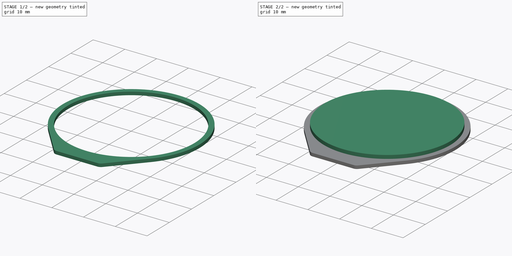
[diagram: build sequence overview — one tinted view per stage of 2, left to right]
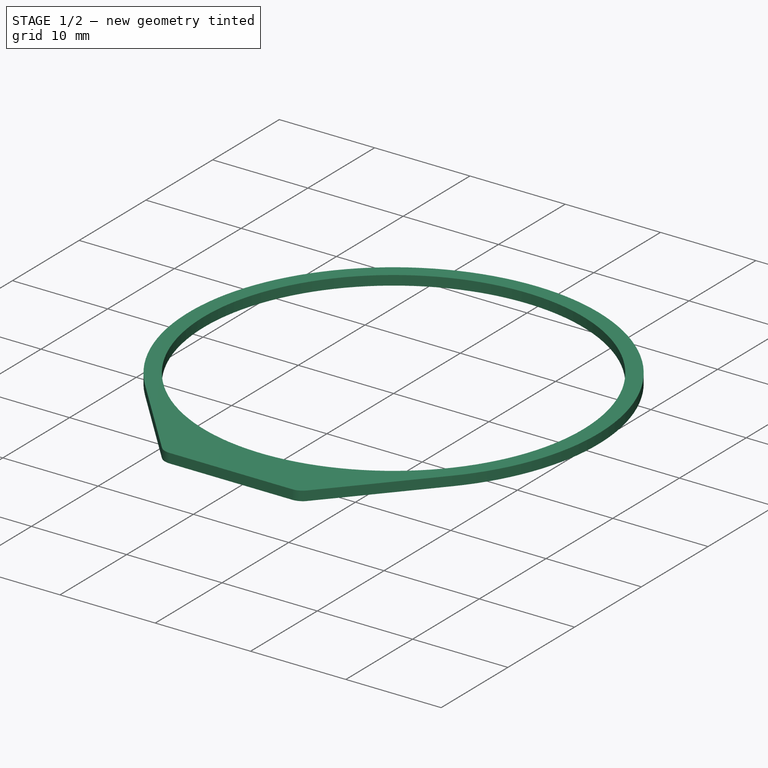
[diagram: stage 1 of 2 — iso view after this stage's code; geometry added in this stage tinted green]
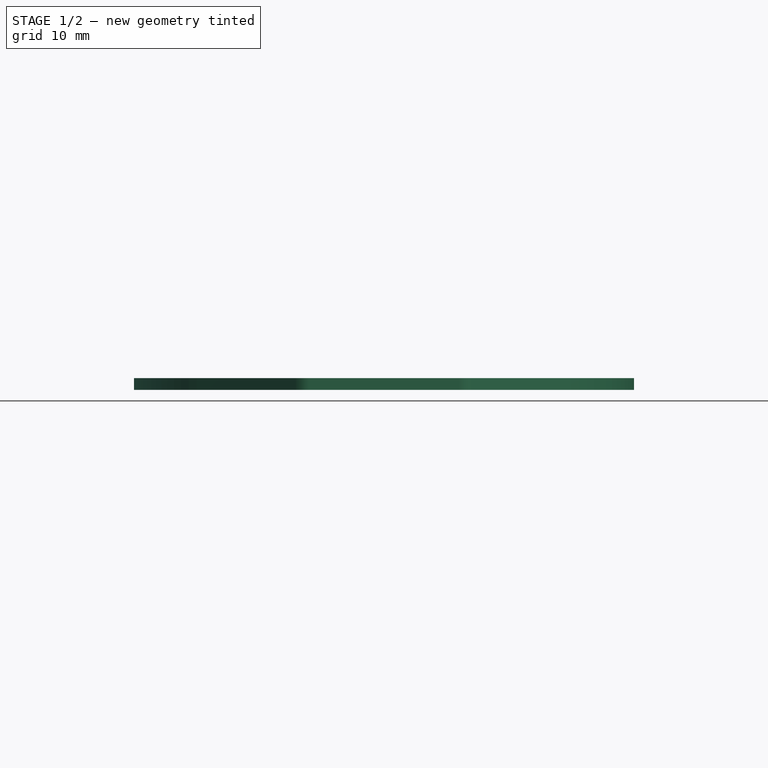
[diagram: stage 1 of 2 — front view after this stage's code; geometry added in this stage tinted green]
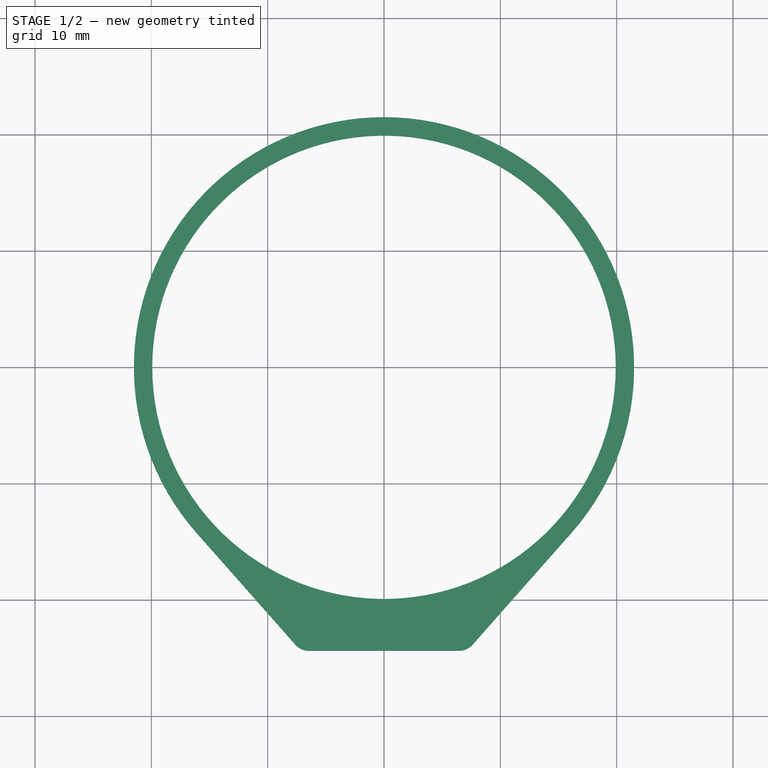
[diagram: stage 1 of 2 — top view after this stage's code; geometry added in this stage tinted green]
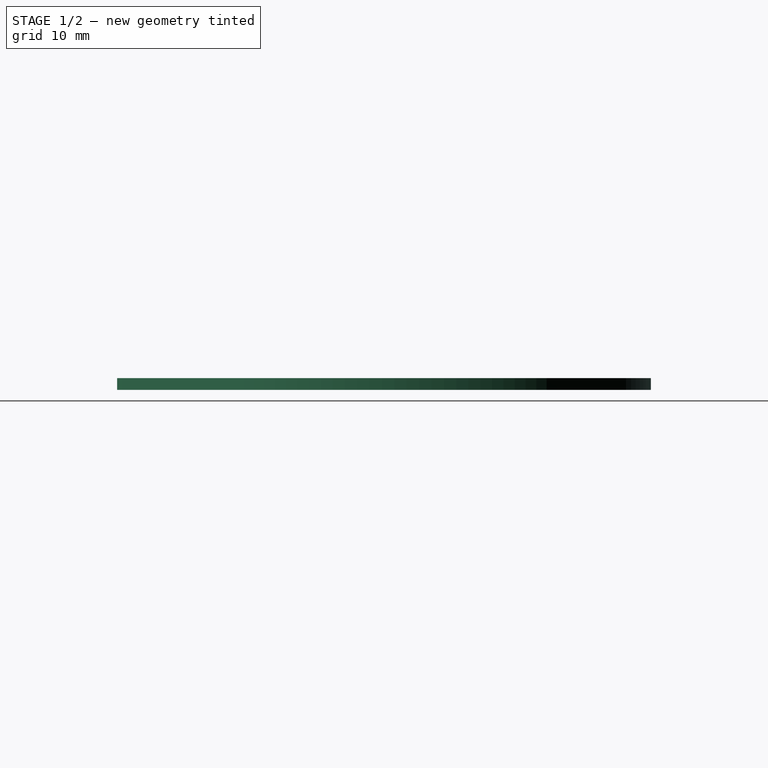
[diagram: stage 1 of 2 — right view after this stage's code; geometry added in this stage tinted green]
FCSTD DOCUMENT  (FreeCAD 0.20R29603 (Git))
Label: LCD
License: All rights reserved
LicenseURL: http://en.wikipedia.org/wiki/All_rights_reserved
objects: PartDesign::Pad×2, Sketcher::SketchObject×1, Image::ImagePlane×1, PartDesign::Body×1
note: 6 computed .brp shape members not serialized (recipe doc carries the construction recipe); baked Part::Feature solids carry a one-line shape summary decoded from their .brp

FEATURE [Sketcher::SketchObject] Sketch
  FullyConstrained = true
  MapMode = 5
  Support = -> [XY_Plane]
  sketch-geometry (10):
    g0: ArcOfCircle CenterX=0 CenterY=0 CenterZ=0 NormalX=0 NormalY=0 NormalZ=1 AngleXU=0 Radius=21.5 StartAngle=5.55918 EndAngle=10.1488
    g1: Circle CenterX=0 CenterY=0 CenterZ=0 NormalX=0 NormalY=0 NormalZ=1 AngleXU=0 Radius=19.92
    g2: GeomPoint X=0 Y=21.5 Z=0
    g3: LineSegment StartX=-16.107 StartY=-14.2413 StartZ=0 EndX=-7.62013 EndY=-23.8399 EndZ=0
    g4: LineSegment StartX=16.107 StartY=-14.2413 StartZ=0 EndX=7.62013 EndY=-23.8399 EndZ=0
    g5: LineSegment StartX=-6.44394 StartY=-24.37 StartZ=0 EndX=6.44394 EndY=-24.37 EndZ=0
    g6: ArcOfCircle CenterX=-6.44394 CenterY=-22.8 CenterZ=0 NormalX=0 NormalY=0 NormalZ=1 AngleXU=0 Radius=1.57 StartAngle=3.86559 EndAngle=4.71239
    g7: GeomPoint X=-7.15147 Y=-24.37 Z=0
    g8: ArcOfCircle CenterX=6.44394 CenterY=-22.8 CenterZ=0 NormalX=0 NormalY=0 NormalZ=1 AngleXU=0 Radius=1.57 StartAngle=4.71239 EndAngle=5.55918
    g9: GeomPoint X=7.15147 Y=-24.37 Z=0
  constraints (22):
    c: Coincident(g0,g-1)
    c: Diameter(g0) = 43
    c: Coincident(g1,g0)
    c: Diameter(g1) = 39.84
    c: PointOnObject(g2,g-2)
    c: PointOnObject(g2,g0)
    c: Symmetric(g7,g9,g-2)
    c: Distance(g2,g5) = 45.87
    c: Distance(g3,g7) = 13.52
    c: Distance(g4,g9) = 13.52
    c: PointOnObject(g7,g3)
    c: PointOnObject(g7,g5)
    c: Tangent(g3,g6) = -1.5708
    c: Tangent(g5,g6) = -1.5708
    c: PointOnObject(g9,g5)
    c: Tangent(g4,g8) = 1.5708
    c: Tangent(g5,g8) = -1.5708
    c: Radius(g6) = 1.57
    c: Radius(g8) = 1.57
    c: Tangent(g0,g3) = -1.5708
    c: Tangent(g0,g4) = 1.5708
    c: Distance(g5) = 12.8879
FEATURE [Image::ImagePlane] ImagePlane
  Placement = pos=(-3.42,2.92,0) rot=(0,0,1;1.5708rad)
  XSize = 59.1896
  YSize = 55.4419
FEATURE [PartDesign::Pad] Pad
  Direction = (0,0,1)
  Length = 1
  Length2 = 10
  Profile = -> Sketch
  ReferenceAxis = -> Sketch [N_Axis]
  Type = 0
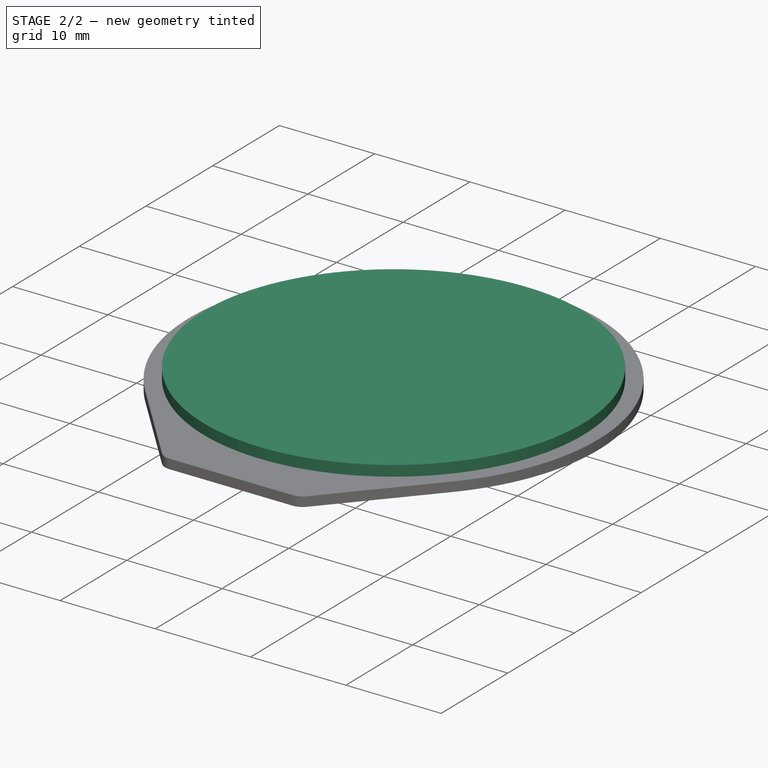
[diagram: stage 2 of 2 — iso view after this stage's code; geometry added in this stage tinted green]
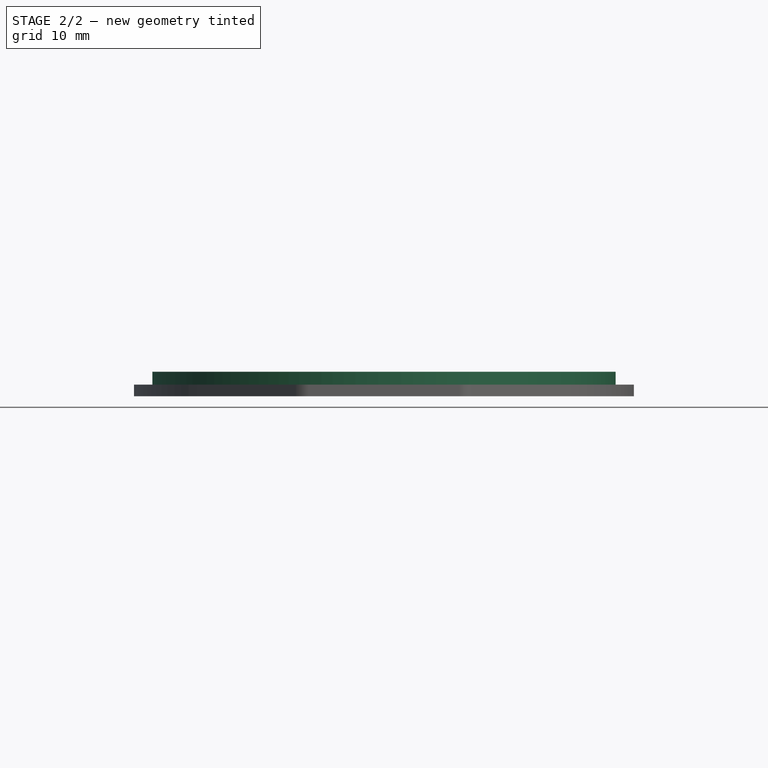
[diagram: stage 2 of 2 — front view after this stage's code; geometry added in this stage tinted green]
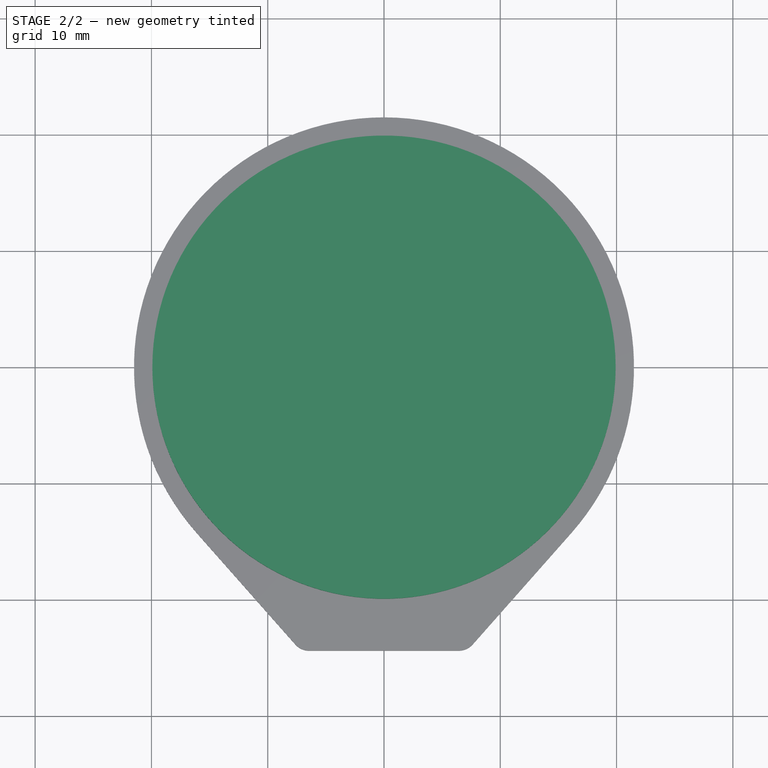
[diagram: stage 2 of 2 — top view after this stage's code; geometry added in this stage tinted green]
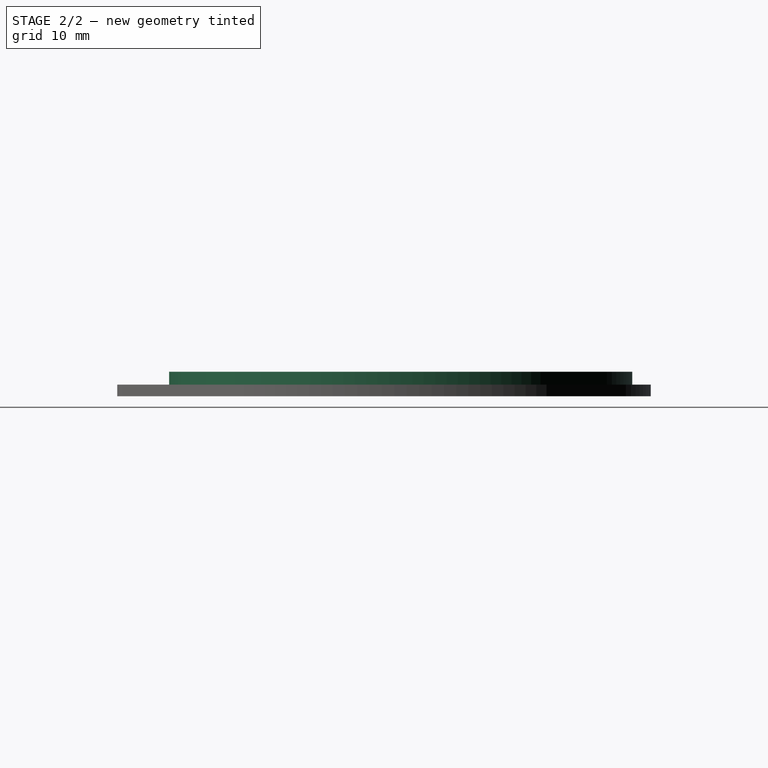
[diagram: stage 2 of 2 — right view after this stage's code; geometry added in this stage tinted green]
FEATURE [PartDesign::Pad] Pad001
  BaseFeature = -> Pad
  Direction = (0,0,1)
  Length = 2.11
  Length2 = 10
  Profile = -> Pad [Edge20]
  Type = 0
FEATURE [PartDesign::Body] Body
  Group = -> [Sketch,Pad,Pad001]
  Origin = -> Origin
  Tip = -> Pad001
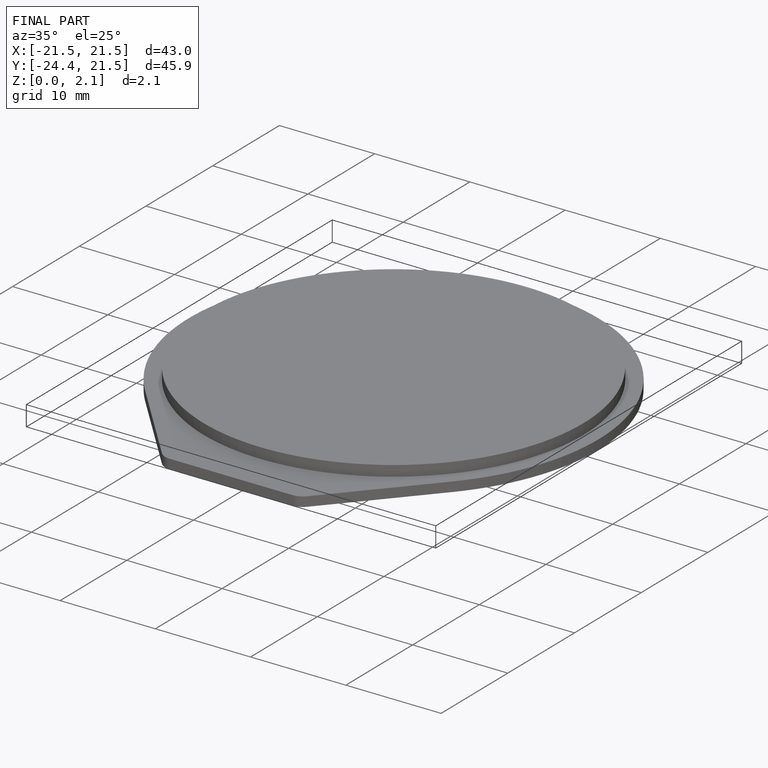
[diagram: finished part — iso view with bounding-box wireframe]
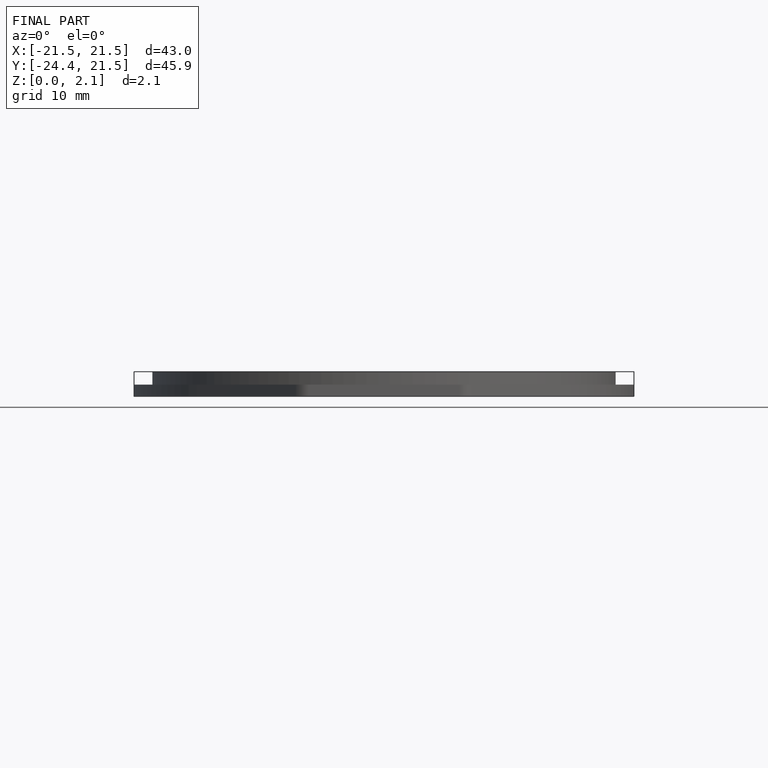
[diagram: finished part — front view with bounding-box wireframe]
